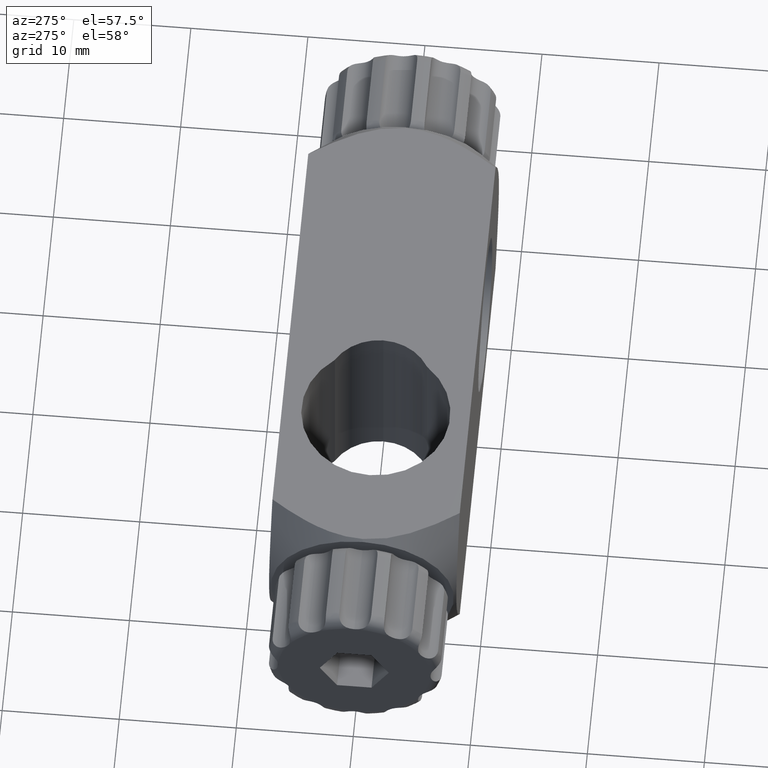
[diagram: clean part render]
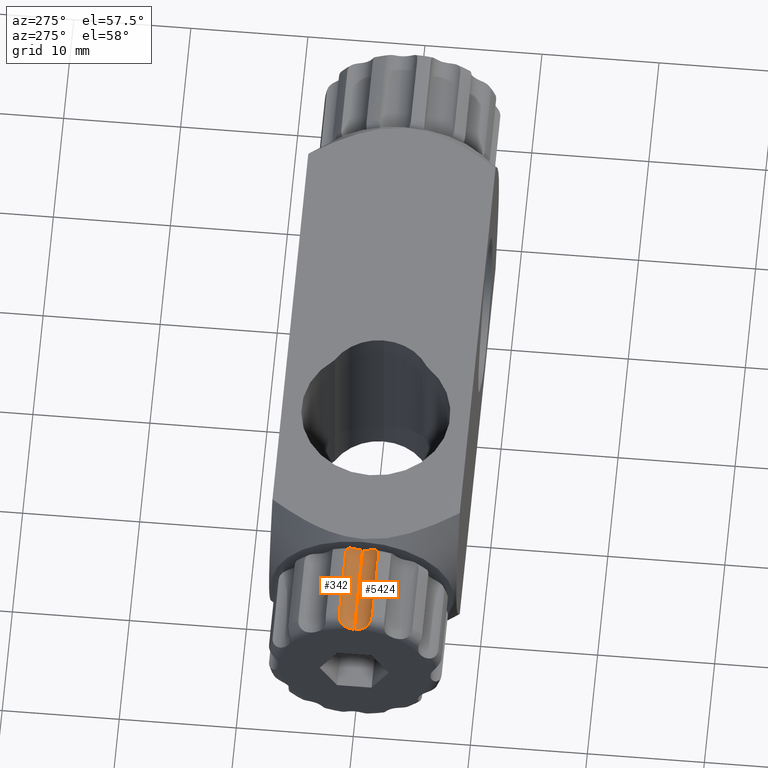
[diagram: same view with one multi-face feature highlighted, each face labeled with its STEP entity id]
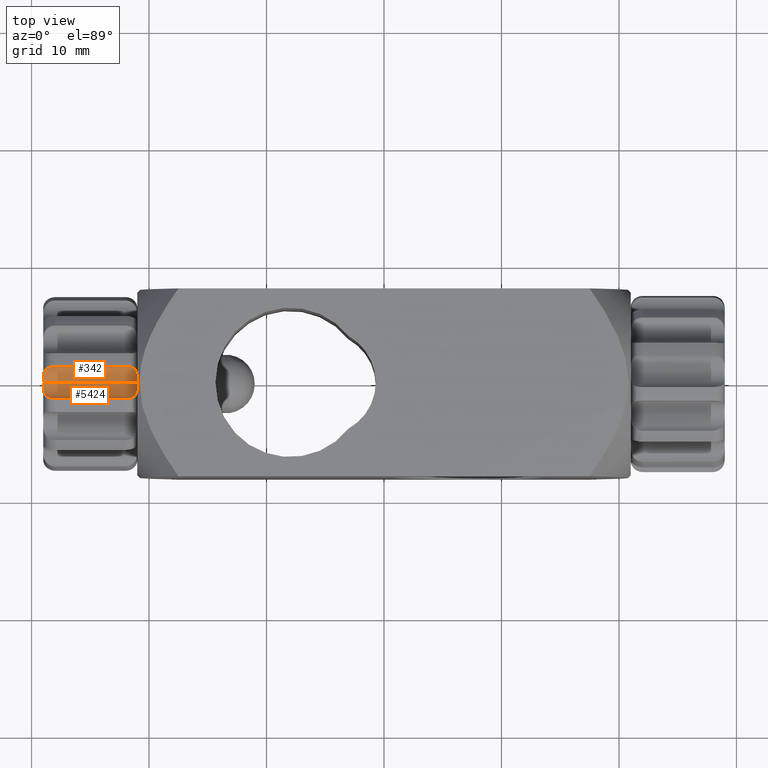
[diagram: same view with one multi-face feature highlighted, each face labeled with its STEP entity id]
A machine part, auxiliary view. The highlighted faces form ONE feature: a constant-radius fillet chain: 2 tangent blend faces with common blend radius 1.5 mm. The faces share edges in the B-rep.
A second angle (top view) of the same feature is appended — it is thin or edge-on in the first view.
Their STEP definitions:
[1] entity #5424 (Cylinder):
#24 = FACE_OUTER_BOUND ( 'NONE', #5746, .T. ) ;
#32 = CARTESIAN_POINT ( 'NONE',  ( -29.00000000000000700, -0.1871688966763615800, 6.500000000000025800 ) ) ;
#57 = VERTEX_POINT ( 'NONE', #3000 ) ;
#89 = ORIENTED_EDGE ( 'NONE', *, *, #3908, .F. ) ;
#213 = CARTESIAN_POINT ( 'NONE',  ( -29.00000000000000000, -1.584149478262019300E-014, 6.500000000000017800 ) ) ;
#308 = DIRECTION ( 'NONE',  ( 1.000000000000000000, 2.958228394578804800E-031, -9.860761315262730800E-032 ) ) ;
#436 = CARTESIAN_POINT ( 'NONE',  ( -24.99999999999999600, -1.363589014329476700, 7.375000000000000900 ) ) ;
#474 = CARTESIAN_POINT ( 'NONE',  ( -28.61081791756818800, -1.261805621970417200, 7.187224362572111500 ) ) ;
#665 = CARTESIAN_POINT ( 'NONE',  ( -22.00000000000000700, -1.363589014329475800, 7.375000000000007100 ) ) ;
#695 = EDGE_CURVE ( 'NONE', #1232, #2376, #3130, .T. ) ;
#942 = CARTESIAN_POINT ( 'NONE',  ( -21.08147621984199600, -0.9513326962301642500, 6.837028718644536900 ) ) ;
#1176 = ORIENTED_EDGE ( 'NONE', *, *, #1668, .F. ) ;
#1232 = VERTEX_POINT ( 'NONE', #5645 ) ;
#1245 = DIRECTION ( 'NONE',  ( 0.0000000000000000000, -1.887379141862758600E-015, -1.000000000000000000 ) ) ;
#1430 = CARTESIAN_POINT ( 'NONE',  ( -21.15331705469860100, -1.079143023187868300, 6.954540084135653700 ) ) ;
#1576 = DIRECTION ( 'NONE',  ( 1.000000000000000000, 2.958228394578804800E-031, -9.860761315262730800E-032 ) ) ;
#1613 = AXIS2_PLACEMENT_3D ( 'NONE', #2589, #308, #1245 ) ;
#1668 = EDGE_CURVE ( 'NONE', #57, #1232, #3200, .T. ) ;
#1806 = CARTESIAN_POINT ( 'NONE',  ( -28.79828812739178200, -1.135650701039591500, 7.017314296601144400 ) ) ;
#1853 = CARTESIAN_POINT ( 'NONE',  ( -21.20099060834534300, -1.134959429104188200, 7.016496679921547600 ) ) ;
#1870 = CARTESIAN_POINT ( 'NONE',  ( -21.00000000000001100, -0.09383145405465460900, 6.500000000000024000 ) ) ;
#1887 = CARTESIAN_POINT ( 'NONE',  ( -21.80976759868309900, -1.363589014329463600, 7.374999999999996400 ) ) ;
#1911 = CARTESIAN_POINT ( 'NONE',  ( -21.02272543713749200, -0.7219252349505757000, 6.681921797539259500 ) ) ;
#1929 = CARTESIAN_POINT ( 'NONE',  ( -20.99983086007095800, -0.1888750948385715900, 6.508995684516249500 ) ) ;
#2174 = CYLINDRICAL_SURFACE ( 'NONE', #1613, 1.500000000000006400 ) ;
#2182 = CARTESIAN_POINT ( 'NONE',  ( -28.19016829415997100, -1.363589014329466400, 7.375000000000001800 ) ) ;
#2326 = CARTESIAN_POINT ( 'NONE',  ( -21.01347099590546100, -0.6373169863436182200, 6.638880031221003900 ) ) ;
#2348 = CARTESIAN_POINT ( 'NONE',  ( -21.00280151425429400, -0.4625611029108308000, 6.570014777501195400 ) ) ;
#2376 = VERTEX_POINT ( 'NONE', #665 ) ;
#2383 = CARTESIAN_POINT ( 'NONE',  ( -21.38810358056107600, -1.261357629087315900, 7.186509264853268200 ) ) ;
#2589 = CARTESIAN_POINT ( 'NONE',  ( -29.00000000000000000, -1.301042606982604200E-014, 8.000000000000024900 ) ) ;
#2736 = CARTESIAN_POINT ( 'NONE',  ( -29.00000000000000000, -1.474514954580285100E-014, 6.500000000000007100 ) ) ;
#2751 = CARTESIAN_POINT ( 'NONE',  ( -29.00250569970266000, -0.3759432120653273300, 6.535837758948096300 ) ) ;
#2770 = CARTESIAN_POINT ( 'NONE',  ( -28.95421380910945400, -0.8882425958941010400, 6.778873669460495900 ) ) ;
#2787 = CARTESIAN_POINT ( 'NONE',  ( -28.68119459307460100, -1.226058643704716700, 7.132731928044632000 ) ) ;
#3000 = CARTESIAN_POINT ( 'NONE',  ( -29.00000000000000000, -1.474514954580285100E-014, 6.500000000000007100 ) ) ;
#3130 = B_SPLINE_CURVE_WITH_KNOTS ( 'NONE', 3,
 ( #3670, #1870, #1929, #5542, #2348, #2326, #1911, #3202, #942, #1430, #1853, #3709, #2383, #3245, #1887, #5504 ),
 .UNSPECIFIED., .F., .F.,
 ( 4, 2, 2, 2, 2, 2, 2, 4 ),
 ( 0.002345343109242183200, 0.002626607650205303600, 0.002907872191168423700, 0.003189136732131544200, 0.003470401273094664600, 0.003751665814057785100, 0.004032930355020905600, 0.004595459436947138700 ),
 .UNSPECIFIED. ) ;
#3200 = LINE ( 'NONE', #213, #5927 ) ;
#3202 = CARTESIAN_POINT ( 'NONE',  ( -21.05638725317352900, -0.8779635601655756400, 6.780292584394940600 ) ) ;
#3204 = EDGE_CURVE ( 'NONE', #2376, #4944, #5601, .T. ) ;
#3245 = CARTESIAN_POINT ( 'NONE',  ( -21.62307058159873200, -1.342505996259962400, 7.322623717193129000 ) ) ;
#3535 = VECTOR ( 'NONE', #4559, 1000.000000000000000 ) ;
#3670 = CARTESIAN_POINT ( 'NONE',  ( -21.00000000000000400, -1.214306433183763900E-014, 6.500000000000019500 ) ) ;
#3676 = CARTESIAN_POINT ( 'NONE',  ( -28.84620838891364500, -1.079783037454627600, 6.955203513549344400 ) ) ;
#3709 = CARTESIAN_POINT ( 'NONE',  ( -21.31823214156769800, -1.225748934484049800, 7.132272372268192700 ) ) ;
#3908 = EDGE_CURVE ( 'NONE', #4944, #57, #4211, .T. ) ;
#3991 = ORIENTED_EDGE ( 'NONE', *, *, #695, .F. ) ;
#4081 = CARTESIAN_POINT ( 'NONE',  ( -28.37670695584173000, -1.342430626794888200, 7.322570542457456500 ) ) ;
#4211 = B_SPLINE_CURVE_WITH_KNOTS ( 'NONE', 3,
 ( #4952, #2182, #4081, #474, #2787, #1806, #3676, #2770, #5912, #2751, #32, #2736 ),
 .UNSPECIFIED., .F., .F.,
 ( 4, 2, 2, 2, 2, 4 ),
 ( 1.972355051116531100E-007, 0.0005628260698711299300, 0.0008441404870541440400, 0.001125454904237158100, 0.001688083738603185700, 0.002250712572969213100 ),
 .UNSPECIFIED. ) ;
#4212 = ORIENTED_EDGE ( 'NONE', *, *, #3204, .F. ) ;
#4559 = DIRECTION ( 'NONE',  ( -1.000000000000000000, -2.958228394578804800E-031, 9.860761315262730800E-032 ) ) ;
#4891 = CARTESIAN_POINT ( 'NONE',  ( -27.99999999999998900, -1.363589014329472400, 7.374999999999999100 ) ) ;
#4944 = VERTEX_POINT ( 'NONE', #4891 ) ;
#4952 = CARTESIAN_POINT ( 'NONE',  ( -27.99999999999998900, -1.363589014329472400, 7.374999999999999100 ) ) ;
#5424 = ADVANCED_FACE ( 'NONE', ( #24 ), #2174, .F. ) ;
#5504 = CARTESIAN_POINT ( 'NONE',  ( -22.00000000000000700, -1.363589014329475800, 7.375000000000007100 ) ) ;
#5542 = CARTESIAN_POINT ( 'NONE',  ( -21.00123009218005200, -0.3728348415620681400, 6.544059805088530800 ) ) ;
#5601 = LINE ( 'NONE', #436, #3535 ) ;
#5645 = CARTESIAN_POINT ( 'NONE',  ( -21.00000000000000400, -1.214306433183763900E-014, 6.500000000000019500 ) ) ;
#5746 = EDGE_LOOP ( 'NONE', ( #1176, #89, #4212, #3991 ) ) ;
#5912 = CARTESIAN_POINT ( 'NONE',  ( -28.98118457777057300, -0.7245438395870240600, 6.673297097562290500 ) ) ;
#5927 = VECTOR ( 'NONE', #1576, 1000.000000000000000 ) ;
[2] entity #342 (Cylinder):
#57 = VERTEX_POINT ( 'NONE', #3000 ) ;
#85 = CARTESIAN_POINT ( 'NONE',  ( -29.00245102510804800, 0.3762462003999310600, 6.536041330220422600 ) ) ;
#130 = ORIENTED_EDGE ( 'NONE', *, *, #1668, .T. ) ;
#152 = CARTESIAN_POINT ( 'NONE',  ( -21.00000000000000400, -1.214306433183763900E-014, 6.500000000000019500 ) ) ;
#168 = DIRECTION ( 'NONE',  ( 1.000000000000000000, 2.958228394578804800E-031, -9.860761315262730800E-032 ) ) ;
#213 = CARTESIAN_POINT ( 'NONE',  ( -29.00000000000000000, -1.584149478262019300E-014, 6.500000000000017800 ) ) ;
#218 = EDGE_LOOP ( 'NONE', ( #2521, #130, #1025, #439 ) ) ;
#342 = ADVANCED_FACE ( 'NONE', ( #5429 ), #1864, .F. ) ;
#439 = ORIENTED_EDGE ( 'NONE', *, *, #1589, .F. ) ;
#602 = CARTESIAN_POINT ( 'NONE',  ( -21.62450805239192800, 1.342901803826484200, 7.323336088760592900 ) ) ;
#968 = CARTESIAN_POINT ( 'NONE',  ( -28.37911375531478700, 1.342042895319904400, 7.321706014561092600 ) ) ;
#1010 = CARTESIAN_POINT ( 'NONE',  ( -20.99751973267756400, 0.3766963925870442400, 6.536086817395315100 ) ) ;
#1013 = CARTESIAN_POINT ( 'NONE',  ( -28.98131066837985200, 0.7230712080696667400, 6.672632598637875400 ) ) ;
#1025 = ORIENTED_EDGE ( 'NONE', *, *, #2742, .F. ) ;
#1045 = VERTEX_POINT ( 'NONE', #3631 ) ;
#1196 = LINE ( 'NONE', #2068, #3624 ) ;
#1232 = VERTEX_POINT ( 'NONE', #5645 ) ;
#1472 = CARTESIAN_POINT ( 'NONE',  ( -28.61308921505880700, 1.260797900960124000, 7.185641897673511900 ) ) ;
#1576 = DIRECTION ( 'NONE',  ( 1.000000000000000000, 2.958228394578804800E-031, -9.860761315262730800E-032 ) ) ;
#1589 = EDGE_CURVE ( 'NONE', #1045, #5201, #1196, .T. ) ;
#1668 = EDGE_CURVE ( 'NONE', #57, #1232, #3200, .T. ) ;
#1864 = CYLINDRICAL_SURFACE ( 'NONE', #4696, 1.500000000000006400 ) ;
#2068 = CARTESIAN_POINT ( 'NONE',  ( -25.00000000000000400, 1.363589014329452200, 7.375000000000022200 ) ) ;
#2100 = B_SPLINE_CURVE_WITH_KNOTS ( 'NONE', 3,
 ( #3658, #4583, #85, #1013, #4198, #2374, #3286, #4638, #1472, #968, #2843, #3318 ),
 .UNSPECIFIED., .F., .F.,
 ( 4, 2, 2, 2, 2, 4 ),
 ( 0.002250712572969213100, 0.002813180442059659500, 0.003375648311150105900, 0.003656882245695329700, 0.003938116180240552700, 0.004500584049331008200 ),
 .UNSPECIFIED. ) ;
#2374 = CARTESIAN_POINT ( 'NONE',  ( -28.84668700422749800, 1.079327121107926100, 6.954638981073975900 ) ) ;
#2425 = CARTESIAN_POINT ( 'NONE',  ( -22.00000000000001400, 1.363589014329458200, 7.375000000000038200 ) ) ;
#2444 = CARTESIAN_POINT ( 'NONE',  ( -21.04535234404055900, 0.8874962327506608100, 6.778178101234540300 ) ) ;
#2521 = ORIENTED_EDGE ( 'NONE', *, *, #3975, .F. ) ;
#2742 = EDGE_CURVE ( 'NONE', #5201, #1232, #4475, .T. ) ;
#2843 = CARTESIAN_POINT ( 'NONE',  ( -28.19040132043963700, 1.363589014330092400, 7.375000000001422900 ) ) ;
#2892 = CARTESIAN_POINT ( 'NONE',  ( -21.00000000000000400, 0.1877457518824787700, 6.500000000000024000 ) ) ;
#3000 = CARTESIAN_POINT ( 'NONE',  ( -29.00000000000000000, -1.474514954580285100E-014, 6.500000000000007100 ) ) ;
#3200 = LINE ( 'NONE', #213, #5927 ) ;
#3286 = CARTESIAN_POINT ( 'NONE',  ( -28.80029751505803400, 1.133676594435898000, 7.014998651889534600 ) ) ;
#3318 = CARTESIAN_POINT ( 'NONE',  ( -27.99999999999999600, 1.363589014329455800, 7.375000000000025800 ) ) ;
#3332 = CARTESIAN_POINT ( 'NONE',  ( -21.81195419890139700, 1.363589014329440200, 7.375000000000000000 ) ) ;
#3624 = VECTOR ( 'NONE', #4353, 1000.000000000000000 ) ;
#3631 = CARTESIAN_POINT ( 'NONE',  ( -27.99999999999999600, 1.363589014329455800, 7.375000000000025800 ) ) ;
#3658 = CARTESIAN_POINT ( 'NONE',  ( -29.00000000000000000, -1.474514954580285100E-014, 6.500000000000007100 ) ) ;
#3779 = CARTESIAN_POINT ( 'NONE',  ( -21.30938315513340300, 1.234270994966239800, 7.141027116563462200 ) ) ;
#3975 = EDGE_CURVE ( 'NONE', #57, #1045, #2100, .T. ) ;
#4198 = CARTESIAN_POINT ( 'NONE',  ( -28.95553757886658300, 0.8850967697929156300, 6.776271890860109600 ) ) ;
#4209 = DIRECTION ( 'NONE',  ( 0.0000000000000000000, -1.887379141862758600E-015, -1.000000000000000000 ) ) ;
#4266 = CARTESIAN_POINT ( 'NONE',  ( -29.00000000000000000, -1.301042606982604200E-014, 8.000000000000024900 ) ) ;
#4353 = DIRECTION ( 'NONE',  ( 1.000000000000000000, 2.958228394578804800E-031, -9.860761315262730800E-032 ) ) ;
#4475 = B_SPLINE_CURVE_WITH_KNOTS ( 'NONE', 3,
 ( #2425, #3332, #602, #3779, #4709, #2444, #5621, #1010, #2892, #152 ),
 .UNSPECIFIED., .F., .F.,
 ( 4, 2, 2, 2, 4 ),
 ( 9.423346789512847500E-005, 0.0006570108782318921300, 0.001219788288568655800, 0.001782565698905419500, 0.002345343109242183200 ),
 .UNSPECIFIED. ) ;
#4583 = CARTESIAN_POINT ( 'NONE',  ( -29.00000000000000000, 0.1871153485977532800, 6.500000000000022200 ) ) ;
#4638 = CARTESIAN_POINT ( 'NONE',  ( -28.68319638011100600, 1.224921519789505100, 7.131082543098725200 ) ) ;
#4696 = AXIS2_PLACEMENT_3D ( 'NONE', #4266, #168, #4209 ) ;
#4709 = CARTESIAN_POINT ( 'NONE',  ( -21.19027171118697300, 1.144455030335146800, 7.014748256032990300 ) ) ;
#5201 = VERTEX_POINT ( 'NONE', #5934 ) ;
#5429 = FACE_OUTER_BOUND ( 'NONE', #218, .T. ) ;
#5621 = CARTESIAN_POINT ( 'NONE',  ( -21.01883078645347800, 0.7244570371736445100, 6.673310895619679600 ) ) ;
#5645 = CARTESIAN_POINT ( 'NONE',  ( -21.00000000000000400, -1.214306433183763900E-014, 6.500000000000019500 ) ) ;
#5927 = VECTOR ( 'NONE', #1576, 1000.000000000000000 ) ;
#5934 = CARTESIAN_POINT ( 'NONE',  ( -22.00000000000001400, 1.363589014329458200, 7.375000000000038200 ) ) ;